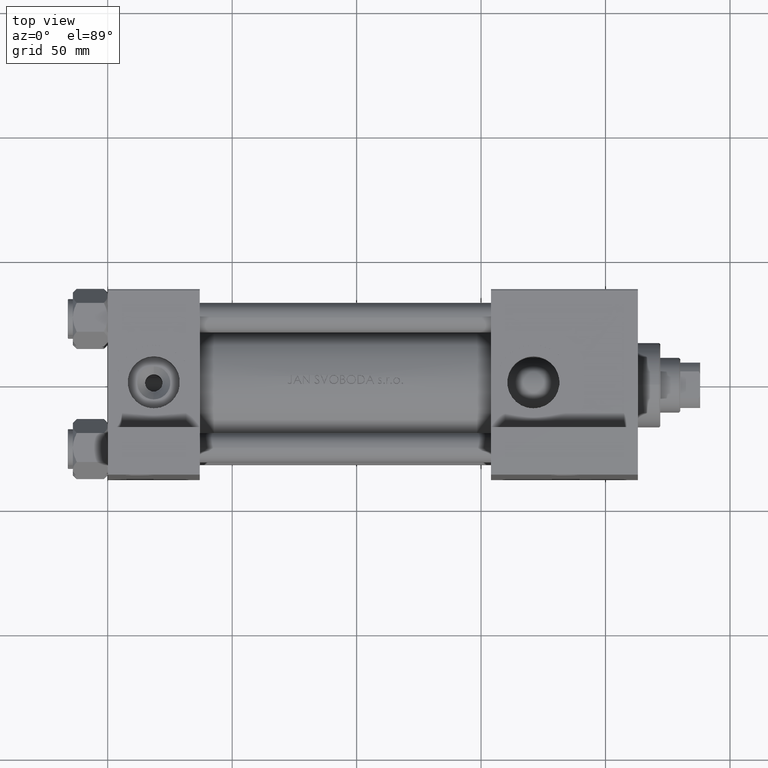
[diagram: clean part render]
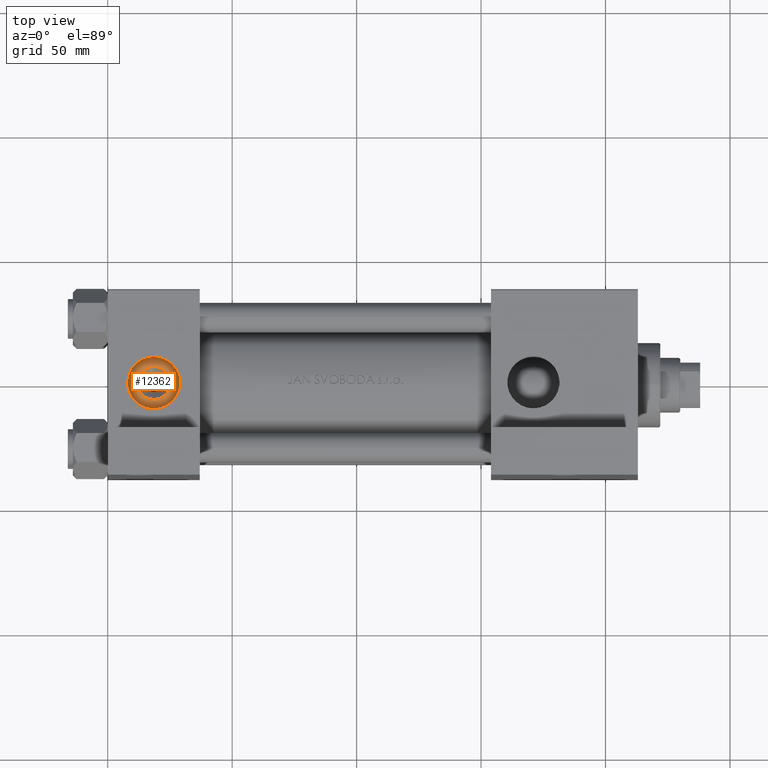
[diagram: same view with one face highlighted and labeled with its STEP entity id]
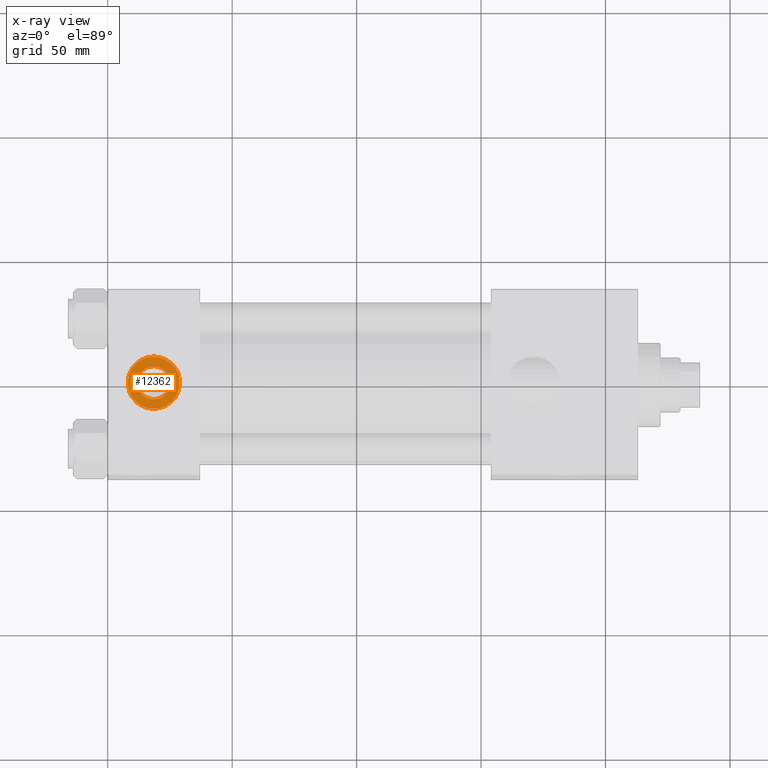
[diagram: x-ray of the same camera — body ghosted, the highlighted face saturated]
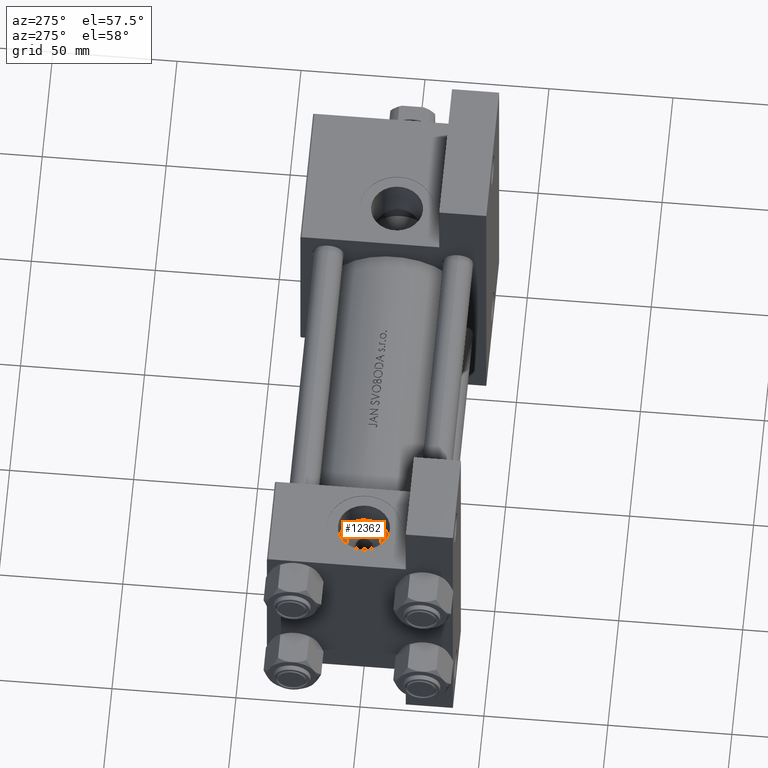
[diagram: same view with one face highlighted and labeled with its STEP entity id]
A machine part, top view. The second image highlights one B-rep face of the part: STEP entity #12362.
The next image is the same camera in x-ray: the body ghosted, the highlighted face saturated — about 0% of this face is hidden behind the body in this view.
A second angle (auxiliary view) of the same face is appended — the face is thin or edge-on in the first view.
In plain terms, the highlighted planar face has unit normal (0, -0, 1).
Its self-contained STEP definition (entity closure, byte-faithful):
#583 = FACE_OUTER_BOUND ( 'NONE', #34068, .T. ) ;
#3580 = DIRECTION ( 'NONE',  ( 0.000000000000000000, -1.000000000000000000, -8.673617379884036705E-17 ) ) ;
#4184 = DIRECTION ( 'NONE',  ( 0.000000000000000000, -1.000000000000000000, -8.673617379884036705E-17 ) ) ;
#6293 = CIRCLE ( 'NONE', #39755, 6.640000000000007674 ) ;
#8755 = AXIS2_PLACEMENT_3D ( 'NONE', #42046, #4184, #27091 ) ;
#10939 = ORIENTED_EDGE ( 'NONE', *, *, #28059, .T. ) ;
#11144 = CIRCLE ( 'NONE', #8755, 10.48000000000000043 ) ;
#11819 = AXIS2_PLACEMENT_3D ( 'NONE', #14098, #47271, #24601 ) ;
#11827 = CARTESIAN_POINT ( 'NONE',  ( 18.50000000000000000, -26.60000000000000497, 6.640000000000005898 ) ) ;
#12025 = DIRECTION ( 'NONE',  ( 0.000000000000000000, 8.673617379884036705E-17, -1.000000000000000000 ) ) ;
#12362 = ADVANCED_FACE ( 'NONE', ( #31228, #583 ), #15767, .T. ) ;
#13595 = CARTESIAN_POINT ( 'NONE',  ( 18.50000000000000000, -26.60000000000000497, -2.524022657546253928E-15 ) ) ;
#14098 = CARTESIAN_POINT ( 'NONE',  ( 18.50000000000000000, -26.60000000000000497, -2.524022657546255111E-15 ) ) ;
#14256 = CARTESIAN_POINT ( 'NONE',  ( 18.50000000000000000, -26.60000000000000497, -10.48000000000000220 ) ) ;
#14580 = DIRECTION ( 'NONE',  ( -0.000000000000000000, 1.000000000000000000, 8.673617379884036705E-17 ) ) ;
#15767 = PLANE ( 'NONE',  #43681 ) ;
#19580 = ORIENTED_EDGE ( 'NONE', *, *, #47340, .T. ) ;
#21339 = CIRCLE ( 'NONE', #11819, 10.48000000000000043 ) ;
#22903 = EDGE_CURVE ( 'NONE', #38169, #26027, #21339, .T. ) ;
#23858 = VERTEX_POINT ( 'NONE', #46244 ) ;
#24601 = DIRECTION ( 'NONE',  ( 0.000000000000000000, 0.000000000000000000, -1.000000000000000000 ) ) ;
#24869 = CIRCLE ( 'NONE', #29641, 6.640000000000007674 ) ;
#26027 = VERTEX_POINT ( 'NONE', #37737 ) ;
#26087 = DIRECTION ( 'NONE',  ( 0.000000000000000000, 0.000000000000000000, -1.000000000000000000 ) ) ;
#27091 = DIRECTION ( 'NONE',  ( 0.000000000000000000, 0.000000000000000000, -1.000000000000000000 ) ) ;
#28059 = EDGE_CURVE ( 'NONE', #38877, #23858, #6293, .T. ) ;
#28801 = DIRECTION ( 'NONE',  ( 0.000000000000000000, 0.000000000000000000, -1.000000000000000000 ) ) ;
#29641 = AXIS2_PLACEMENT_3D ( 'NONE', #13595, #14580, #28801 ) ;
#29830 = CARTESIAN_POINT ( 'NONE',  ( 18.50000000000000000, -26.60000000000000497, -2.524022657546253928E-15 ) ) ;
#31228 = FACE_BOUND ( 'NONE', #42828, .T. ) ;
#32689 = ORIENTED_EDGE ( 'NONE', *, *, #35115, .T. ) ;
#34068 = EDGE_LOOP ( 'NONE', ( #45015, #19580 ) ) ;
#34074 = DIRECTION ( 'NONE',  ( -0.000000000000000000, 1.000000000000000000, 8.673617379884036705E-17 ) ) ;
#35115 = EDGE_CURVE ( 'NONE', #23858, #38877, #24869, .T. ) ;
#37737 = CARTESIAN_POINT ( 'NONE',  ( 18.50000000000000000, -26.60000000000000497, 10.47999999999999865 ) ) ;
#38169 = VERTEX_POINT ( 'NONE', #14256 ) ;
#38877 = VERTEX_POINT ( 'NONE', #11827 ) ;
#39755 = AXIS2_PLACEMENT_3D ( 'NONE', #29830, #34074, #26087 ) ;
#42046 = CARTESIAN_POINT ( 'NONE',  ( 18.50000000000000000, -26.60000000000000497, -2.524022657546255111E-15 ) ) ;
#42828 = EDGE_LOOP ( 'NONE', ( #32689, #10939 ) ) ;
#43681 = AXIS2_PLACEMENT_3D ( 'NONE', #46165, #3580, #12025 ) ;
#45015 = ORIENTED_EDGE ( 'NONE', *, *, #22903, .T. ) ;
#46165 = CARTESIAN_POINT ( 'NONE',  ( 18.50000000000000000, -26.60000000000000497, -2.524022657546255111E-15 ) ) ;
#46244 = CARTESIAN_POINT ( 'NONE',  ( 18.50000000000000000, -26.60000000000000497, -6.640000000000010338 ) ) ;
#47271 = DIRECTION ( 'NONE',  ( 0.000000000000000000, -1.000000000000000000, -8.673617379884036705E-17 ) ) ;
#47340 = EDGE_CURVE ( 'NONE', #26027, #38169, #11144, .T. ) ;